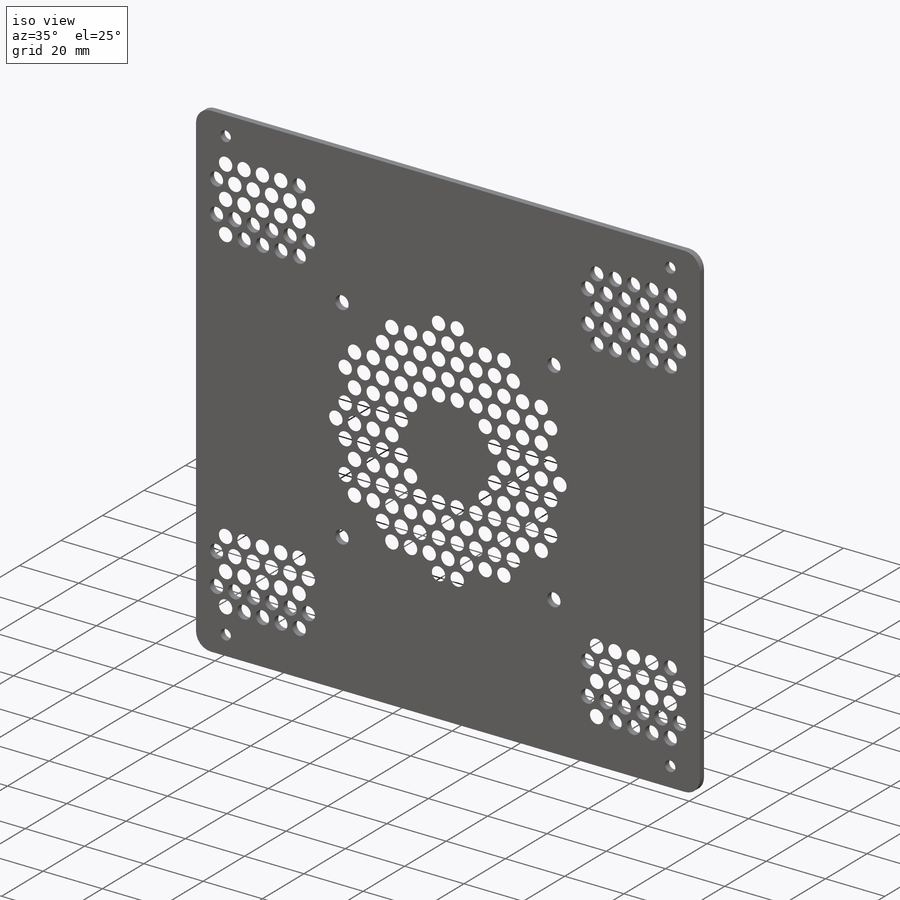
[diagram: iso view]
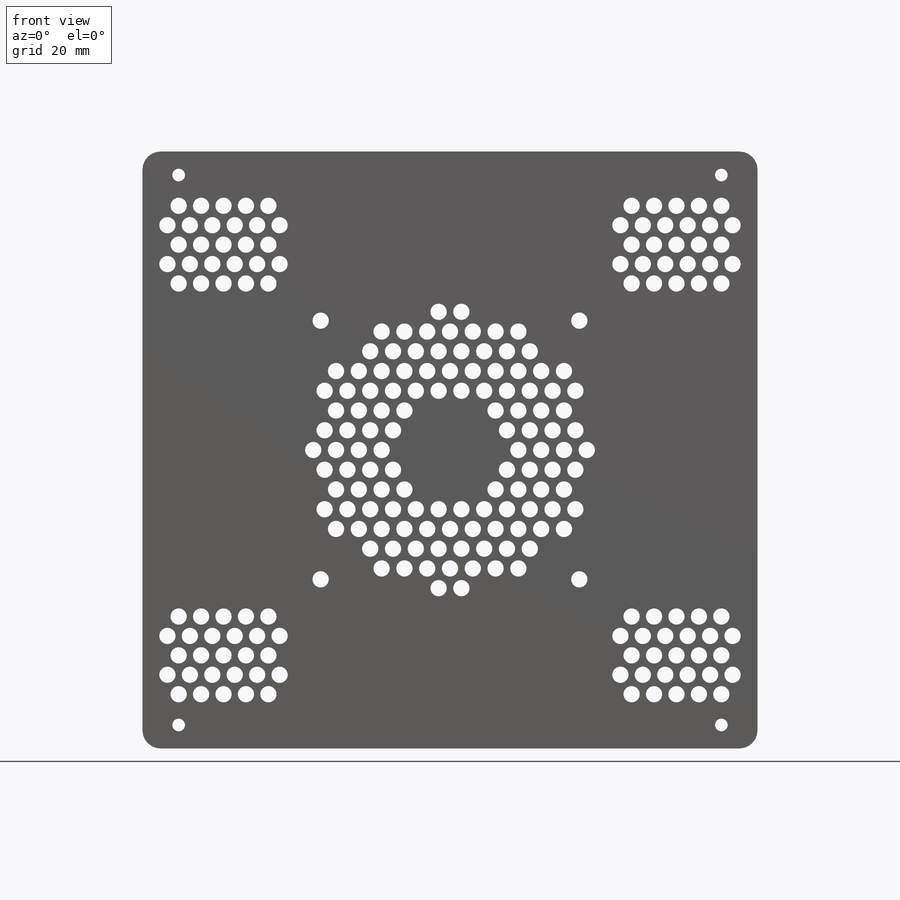
[diagram: front view]
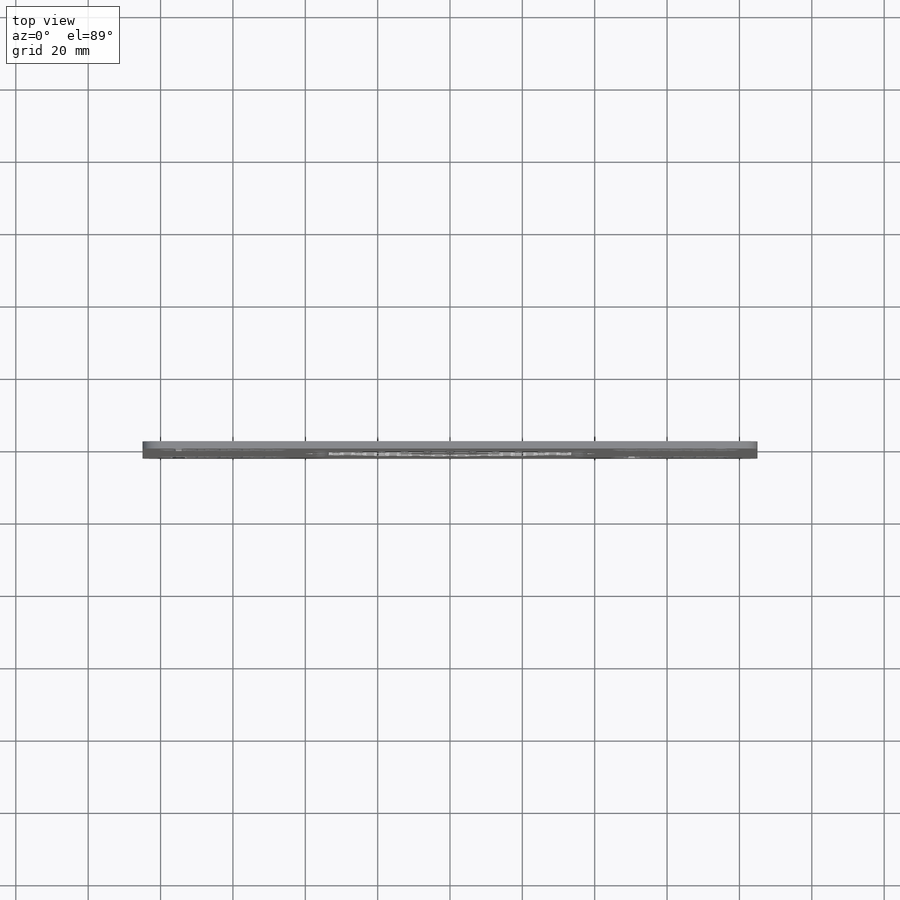
[diagram: top view]
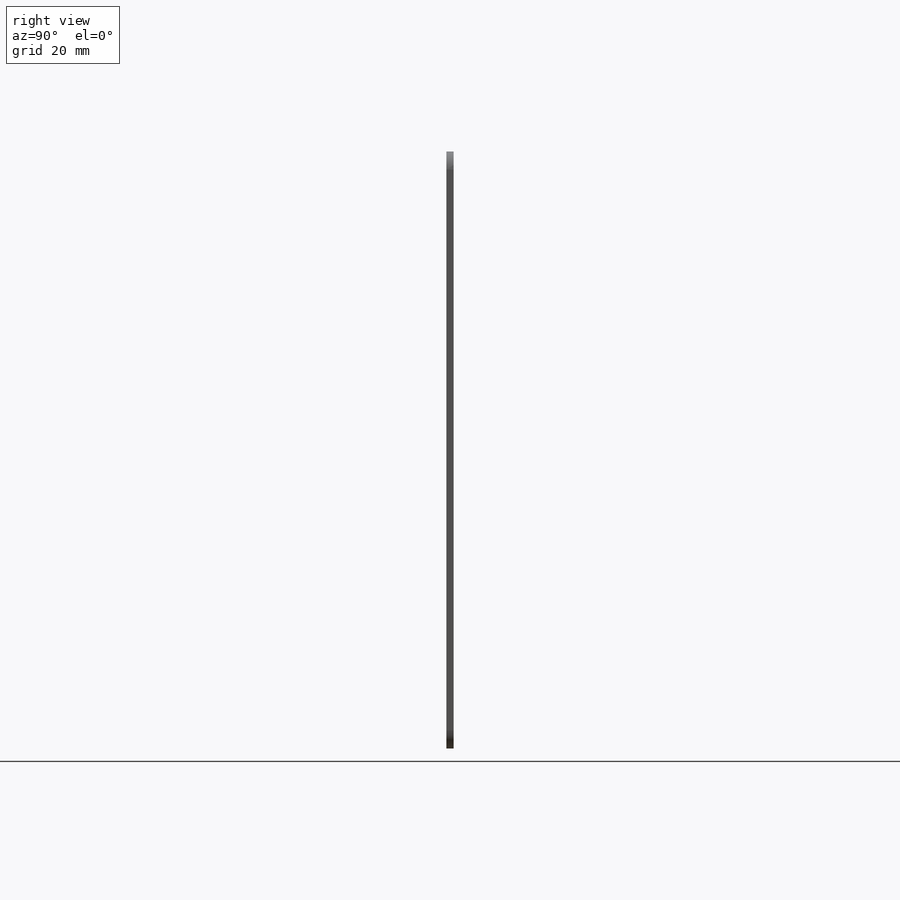
[diagram: right view]
SOLIDWORKS PART (.sldprt)
format: sldprt  version: not decoded by parser v0  size: 690,176 bytes
history: native  units: mm
features: sketch x3, cut_extrude x2, material x1, extrude x1, pattern_linear x1, pattern_circular x1 (+11 scaffold rows collapsed)
feature tree (20):
  scaffold x11  (default folders/planes/origin — collapsed)
  material  "6061-T6 (SS)"
  sketch  "Sketch1"  dims[D1=3.5mm D6=5.0mm D9=4.5mm D10=80.0mm D11=30.0mm D12=80.0mm D2=150.0mm D3=152.0mm D4=170.0mm D5=165.0mm D7=71.5mm D8=71.5mm]
  extrude  "Boss-Extrude1"  Depth=2.032mm
  sketch  "Sketch3"  dims[c1.D13=4.5mm c1.D1=~9.37247mm c1.D2=10.0mm c1.D3=15.0mm c1.D4=10.0mm c2.D1=15.0mm c2.D5=4.7625mm c2.D6=8.0mm c2.D7=8.0mm c2.D8=8.0mm c2.D9=8.0mm c2.D10=30.0mm c2.D11=10.0mm c2.D12=6.2mm c2.D14=15.0mm]
  cut_extrude  "Cut-Extrude2"  [1 undecoded]
  pattern_linear  "LPattern1"  Count1=2 Count2=2 Spacing1=113.5226mm Spacing2=125.2mm
  sketch  "Sketch4"  dims[c1.D1=80.0mm c1.D2=33.0mm c1.D13=82.0mm c1.D14=32.0mm c1.D4=4.7625mm c1.D12=4.7625mm c1.D5=4.5mm c1.D3=7.5mm c2.D4=7.5mm c2.D5=7.5mm c2.D6=7.5mm c2.D7=7.5mm c2.D8=7.5mm c2.D9=7.5mm c2.D10=7.5mm c2.D11=7.5mm c2.D12=7.5mm c2.D3=~45.207805mm c3.D3=60.0deg c3.D5=16.25mm c3.D6=6.5mm c3.D7=6.5mm c3.D8=6.5mm c3.D9=6.0mm c3.D10=6.0mm c4.D9=35.3049mm c4.D11=37.5mm c4.D4=6.3mm]
  cut_extrude  "Cut-Extrude3"  [1 undecoded]
  pattern_circular  "CirPattern1"  Count=6 Angle=360deg
decode coverage: 6 of 8 modeling features carry decoded parameters
note: ~ marks probable driven/reference dimensions
note: 2 parameter values undecoded
note: suppression state not decoded; provenance and decode notes live in map.json
